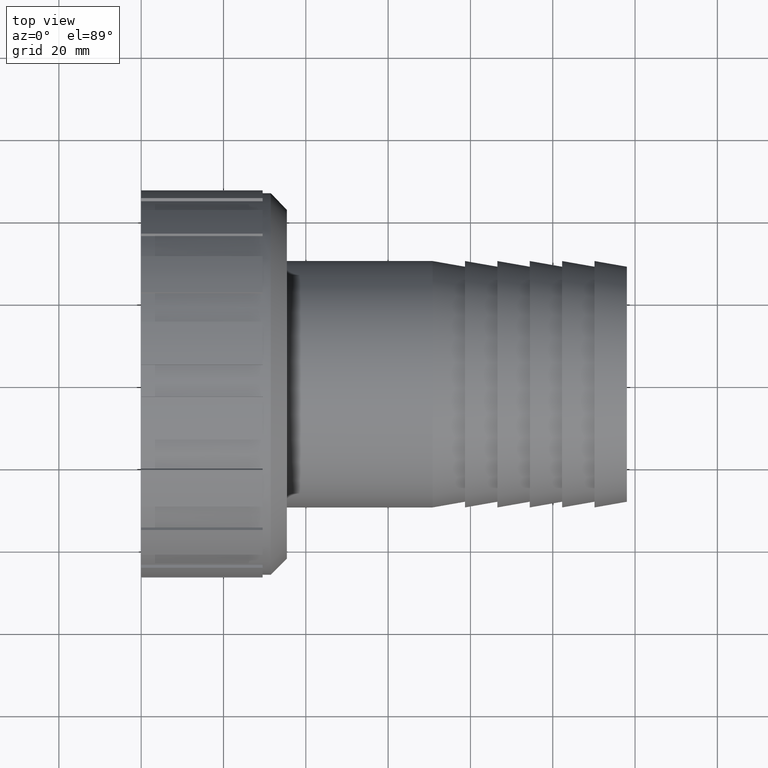
[diagram: clean part render]
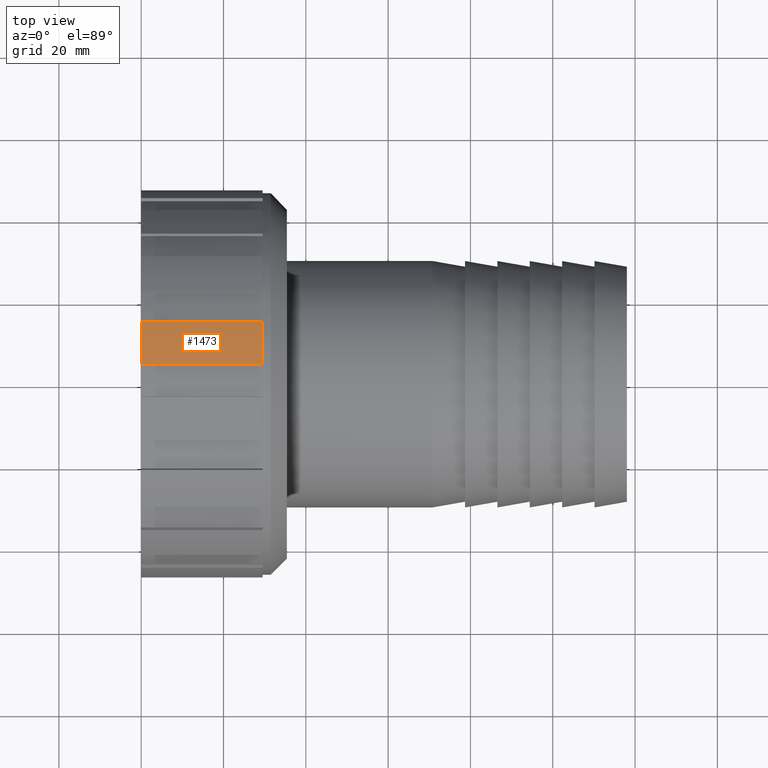
[diagram: same view with one face highlighted and labeled with its STEP entity id]
A machine part, top view. The second image highlights one B-rep face of the part: STEP entity #1473.
In plain terms, the highlighted cylindrical surface (partial cylindrical patch) has radius 47.1456 mm, axis along (-1, 0, 0).
Its self-contained STEP definition (entity closure, byte-faithful):
#22=CYLINDRICAL_SURFACE('',#1624,47.1456);
#65=CIRCLE('',#1546,47.1456);
#95=CIRCLE('',#1577,47.1456);
#192=FACE_OUTER_BOUND('',#277,.T.);
#277=EDGE_LOOP('',(#1196,#1197,#1198,#1199));
#450=LINE('',#2410,#578);
#457=LINE('',#2510,#585);
#578=VECTOR('',#1858,29.5);
#585=VECTOR('',#2031,29.5);
#705=VERTEX_POINT('',#2406);
#707=VERTEX_POINT('',#2409);
#712=VERTEX_POINT('',#2422);
#714=VERTEX_POINT('',#2456);
#853=EDGE_CURVE('',#707,#705,#450,.T.);
#861=EDGE_CURVE('',#712,#705,#65,.T.);
#891=EDGE_CURVE('',#714,#707,#95,.T.);
#925=EDGE_CURVE('',#712,#714,#457,.T.);
#1196=ORIENTED_EDGE('',*,*,#853,.T.);
#1197=ORIENTED_EDGE('',*,*,#861,.F.);
#1198=ORIENTED_EDGE('',*,*,#925,.T.);
#1199=ORIENTED_EDGE('',*,*,#891,.T.);
#1473=ADVANCED_FACE('',(#192),#22,.T.);
#1546=AXIS2_PLACEMENT_3D('',#2424,#1871,#1872);
#1577=AXIS2_PLACEMENT_3D('',#2457,#1933,#1934);
#1624=AXIS2_PLACEMENT_3D('',#2509,#2029,#2030);
#1858=DIRECTION('',(-1.,0.,0.));
#1871=DIRECTION('center_axis',(-1.,0.,0.));
#1872=DIRECTION('ref_axis',(0.,0.,1.));
#1933=DIRECTION('center_axis',(-1.,0.,0.));
#1934=DIRECTION('ref_axis',(0.,0.,1.));
#2029=DIRECTION('center_axis',(-1.,0.,0.));
#2030=DIRECTION('ref_axis',(0.,-1.,0.));
#2031=DIRECTION('',(1.,0.,0.));
#2406=CARTESIAN_POINT('',(0.,14.349347705257,44.9088389940514));
#2409=CARTESIAN_POINT('',(29.5,14.349347705257,44.9088389940514));
#2410=CARTESIAN_POINT('',(14.75,14.349347705257,44.9088389940514));
#2422=CARTESIAN_POINT('',(0.,3.9288,46.9816148074968));
#2424=CARTESIAN_POINT('Origin',(0.,0.,0.));
#2456=CARTESIAN_POINT('',(29.5,3.9288,46.9816148074968));
#2457=CARTESIAN_POINT('Origin',(29.5,0.,0.));
#2509=CARTESIAN_POINT('Origin',(14.75,0.,0.));
#2510=CARTESIAN_POINT('',(14.75,3.9288,46.9816148074968));